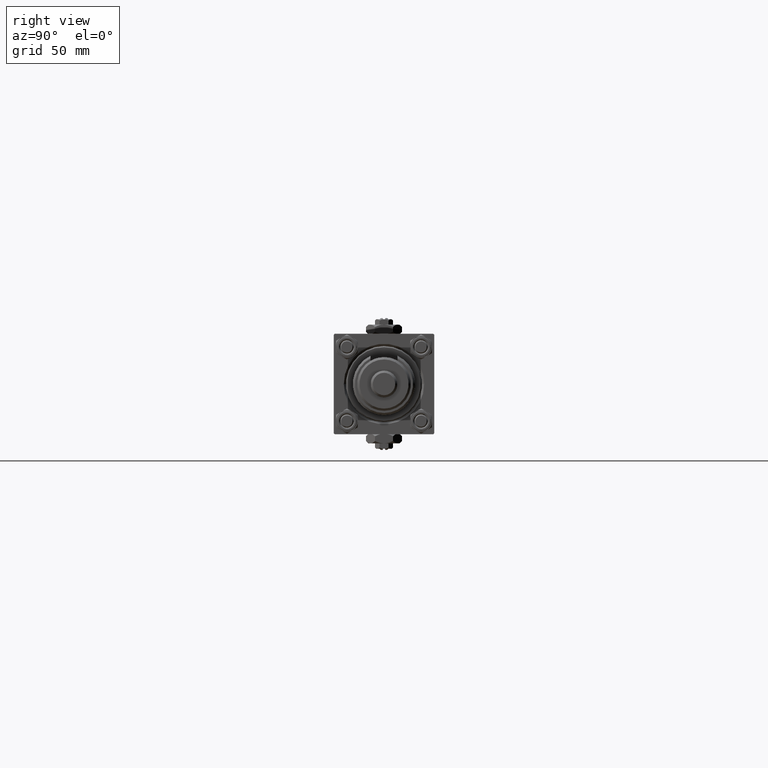
[diagram: clean part render]
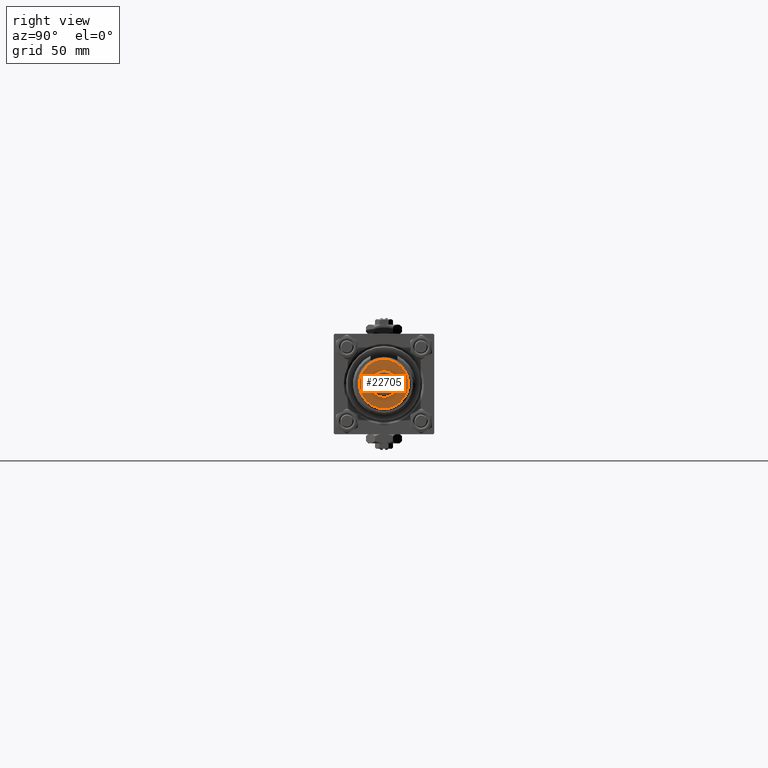
[diagram: same view with one face highlighted and labeled with its STEP entity id]
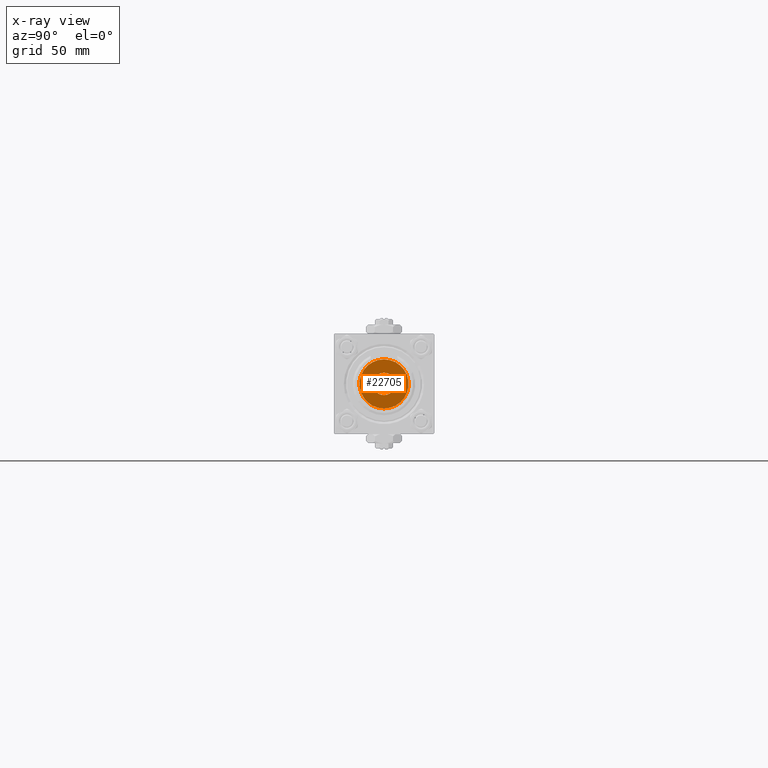
[diagram: x-ray of the same camera — body ghosted, the highlighted face saturated]
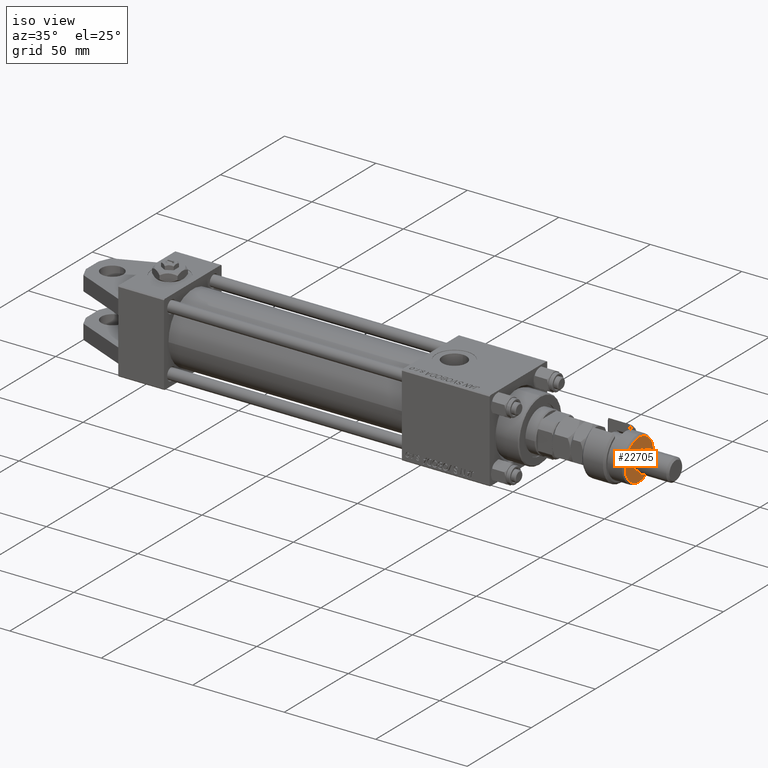
[diagram: same view with one face highlighted and labeled with its STEP entity id]
A machine part, right view. The second image highlights one B-rep face of the part: STEP entity #22705.
The next image is the same camera in x-ray: the body ghosted, the highlighted face saturated — about 0% of this face is hidden behind the body in this view.
A second angle (iso view) of the same face is appended — the face is thin or edge-on in the first view.
In plain terms, the highlighted planar face has unit normal (1, 0, 0).
Its self-contained STEP definition (entity closure, byte-faithful):
#1688 = CARTESIAN_POINT ( 'NONE',  ( 5.000000000000000000, 6.123233995736766282E-16, 22.00000000000000000 ) ) ;
#2179 = CARTESIAN_POINT ( 'NONE',  ( 0.000000000000000000, 0.000000000000000000, 22.00000000000000000 ) ) ;
#5294 = DIRECTION ( 'NONE',  ( 0.000000000000000000, 0.000000000000000000, 1.000000000000000000 ) ) ;
#14114 = CARTESIAN_POINT ( 'NONE',  ( 0.000000000000000000, 0.000000000000000000, 22.00000000000000000 ) ) ;
#15716 = AXIS2_PLACEMENT_3D ( 'NONE', #32676, #15884, #49516 ) ;
#15884 = DIRECTION ( 'NONE',  ( 0.000000000000000000, 0.000000000000000000, 1.000000000000000000 ) ) ;
#16615 = CIRCLE ( 'NONE', #15716, 5.000000000000000000 ) ;
#17234 = EDGE_CURVE ( 'NONE', #47532, #36350, #16615, .T. ) ;
#17237 = EDGE_CURVE ( 'NONE', #41514, #53218, #37745, .T. ) ;
#19039 = CIRCLE ( 'NONE', #41926, 10.99999999999999645 ) ;
#19561 = AXIS2_PLACEMENT_3D ( 'NONE', #14114, #5294, #34224 ) ;
#20173 = DIRECTION ( 'NONE',  ( 0.000000000000000000, 0.000000000000000000, 1.000000000000000000 ) ) ;
#21627 = CARTESIAN_POINT ( 'NONE',  ( 0.000000000000000000, 0.000000000000000000, 22.00000000000000000 ) ) ;
#22580 = FACE_OUTER_BOUND ( 'NONE', #47567, .T. ) ;
#22705 = ADVANCED_FACE ( 'NONE', ( #22580, #47668 ), #31109, .T. ) ;
#23905 = ORIENTED_EDGE ( 'NONE', *, *, #17237, .T. ) ;
#25440 = CARTESIAN_POINT ( 'NONE',  ( 10.99999999999999645, 1.408343819019456176E-15, 22.00000000000000000 ) ) ;
#25482 = ORIENTED_EDGE ( 'NONE', *, *, #37336, .T. ) ;
#25737 = CIRCLE ( 'NONE', #19561, 5.000000000000000000 ) ;
#31109 = PLANE ( 'NONE',  #36118 ) ;
#31386 = DIRECTION ( 'NONE',  ( 1.000000000000000000, 0.000000000000000000, -0.000000000000000000 ) ) ;
#32676 = CARTESIAN_POINT ( 'NONE',  ( 0.000000000000000000, 0.000000000000000000, 22.00000000000000000 ) ) ;
#34224 = DIRECTION ( 'NONE',  ( 1.000000000000000000, 0.000000000000000000, 0.000000000000000000 ) ) ;
#36118 = AXIS2_PLACEMENT_3D ( 'NONE', #2179, #52632, #31386 ) ;
#36156 = CARTESIAN_POINT ( 'NONE',  ( -5.000000000000000000, 0.000000000000000000, 22.00000000000000000 ) ) ;
#36350 = VERTEX_POINT ( 'NONE', #36156 ) ;
#36629 = ORIENTED_EDGE ( 'NONE', *, *, #53228, .F. ) ;
#36984 = DIRECTION ( 'NONE',  ( 1.000000000000000000, 0.000000000000000000, 0.000000000000000000 ) ) ;
#37336 = EDGE_CURVE ( 'NONE', #53218, #41514, #19039, .T. ) ;
#37745 = CIRCLE ( 'NONE', #44784, 10.99999999999999645 ) ;
#41514 = VERTEX_POINT ( 'NONE', #53976 ) ;
#41926 = AXIS2_PLACEMENT_3D ( 'NONE', #49951, #20173, #36984 ) ;
#42036 = DIRECTION ( 'NONE',  ( 1.000000000000000000, 0.000000000000000000, 0.000000000000000000 ) ) ;
#42424 = EDGE_LOOP ( 'NONE', ( #36629, #45458 ) ) ;
#44784 = AXIS2_PLACEMENT_3D ( 'NONE', #21627, #50326, #42036 ) ;
#45458 = ORIENTED_EDGE ( 'NONE', *, *, #17234, .F. ) ;
#47532 = VERTEX_POINT ( 'NONE', #1688 ) ;
#47567 = EDGE_LOOP ( 'NONE', ( #23905, #25482 ) ) ;
#47668 = FACE_BOUND ( 'NONE', #42424, .T. ) ;
#49516 = DIRECTION ( 'NONE',  ( 1.000000000000000000, 0.000000000000000000, 0.000000000000000000 ) ) ;
#49951 = CARTESIAN_POINT ( 'NONE',  ( 0.000000000000000000, 0.000000000000000000, 22.00000000000000000 ) ) ;
#50326 = DIRECTION ( 'NONE',  ( 0.000000000000000000, 0.000000000000000000, 1.000000000000000000 ) ) ;
#52632 = DIRECTION ( 'NONE',  ( 0.000000000000000000, 0.000000000000000000, 1.000000000000000000 ) ) ;
#53218 = VERTEX_POINT ( 'NONE', #25440 ) ;
#53228 = EDGE_CURVE ( 'NONE', #36350, #47532, #25737, .T. ) ;
#53976 = CARTESIAN_POINT ( 'NONE',  ( -10.99999999999999645, 0.000000000000000000, 22.00000000000000000 ) ) ;